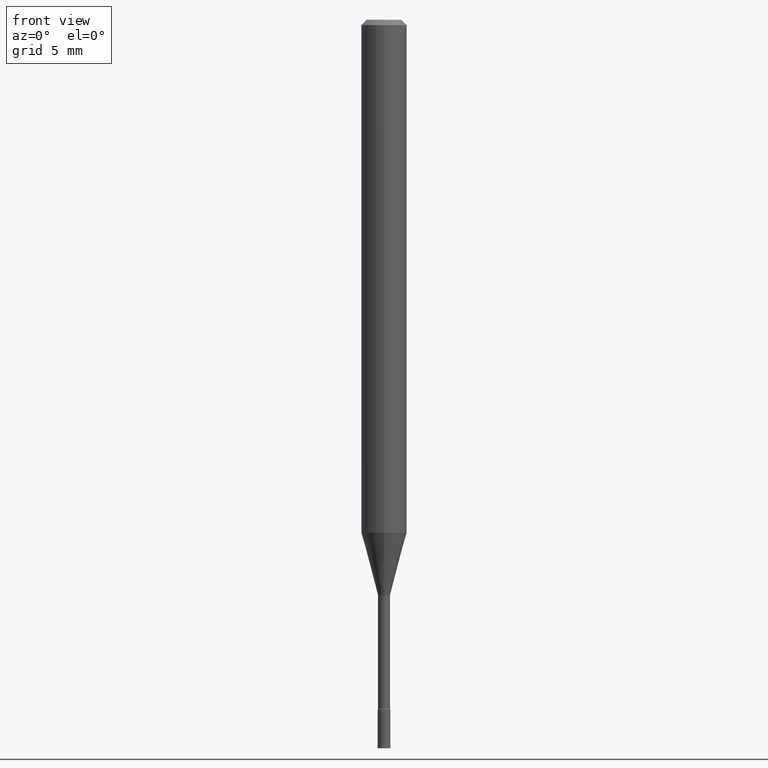
[diagram: clean part render]
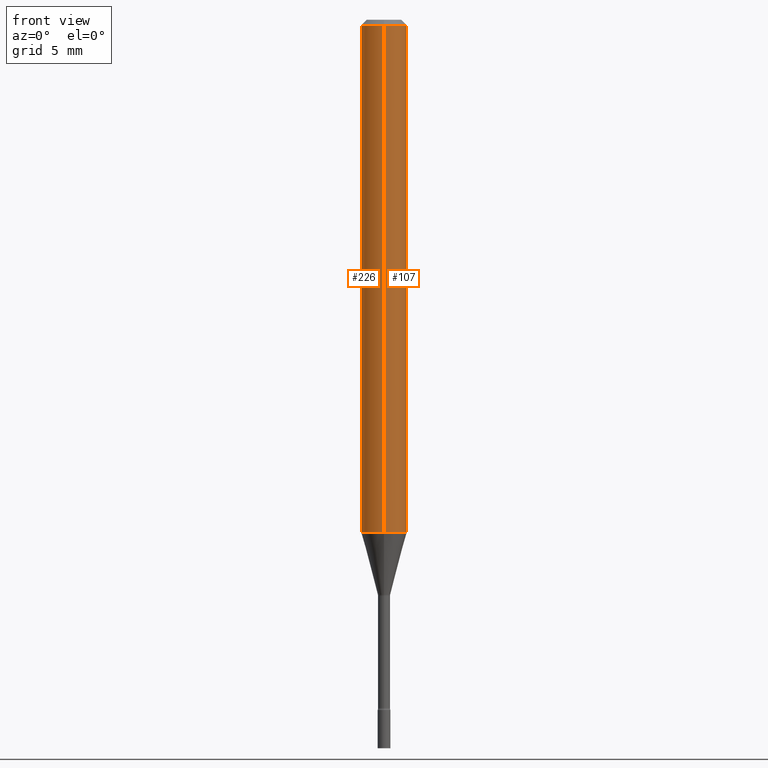
[diagram: same view with one multi-face feature highlighted, each face labeled with its STEP entity id]
A machine part, front view. The highlighted faces form ONE feature: a constant-radius fillet chain: 2 tangent blend faces with common blend radius 1.5875 mm. The faces share edges in the B-rep.
Their STEP definitions:
[1] entity #226 (Cylinder):
#5 = LINE ( 'NONE', #327, #28 ) ;
#13 = VERTEX_POINT ( 'NONE', #348 ) ;
#28 = VECTOR ( 'NONE', #398, 39.37007874015748143 ) ;
#31 = CARTESIAN_POINT ( 'NONE',  ( -4.364351673553916201E-16, -0.06250000000000000000, 2.182143973796483697E-16 ) ) ;
#53 = CARTESIAN_POINT ( 'NONE',  ( 0.000000000000000000, 0.000000000000000000, 0.000000000000000000 ) ) ;
#57 = ORIENTED_EDGE ( 'NONE', *, *, #69, .T. ) ;
#59 = EDGE_LOOP ( 'NONE', ( #330, #57, #421, #294 ) ) ;
#69 = EDGE_CURVE ( 'NONE', #13, #382, #179, .T. ) ;
#102 = EDGE_CURVE ( 'NONE', #382, #163, #379, .T. ) ;
#115 = CARTESIAN_POINT ( 'NONE',  ( -4.364351673553912750E-16, -0.06250000000000005551, -0.01499999999999981209 ) ) ;
#125 = DIRECTION ( 'NONE',  ( -6.982962677686265922E-15, -1.000000000000000000, 3.491430358074373916E-15 ) ) ;
#159 = CIRCLE ( 'NONE', #264, 0.06250000000000000000 ) ;
#163 = VERTEX_POINT ( 'NONE', #115 ) ;
#179 = CIRCLE ( 'NONE', #495, 0.06250000000000000000 ) ;
#202 = FACE_OUTER_BOUND ( 'NONE', #59, .T. ) ;
#210 = VERTEX_POINT ( 'NONE', #240 ) ;
#216 = CARTESIAN_POINT ( 'NONE',  ( -4.364351673553573540E-16, -0.06250000000000494049, -1.408139060311453195 ) ) ;
#225 = DIRECTION ( 'NONE',  ( -2.445504405865697767E-29, 3.491430358074373916E-15, 1.000000000000000000 ) ) ;
#226 = ADVANCED_FACE ( 'NONE', ( #202 ), #404, .T. ) ;
#240 = CARTESIAN_POINT ( 'NONE',  ( 4.440892098500972274E-16, 0.06249999999999993755, -0.01500000000000024751 ) ) ;
#255 = DIRECTION ( 'NONE',  ( -6.982962677686265922E-15, -1.000000000000000000, 3.483106191921935554E-15 ) ) ;
#264 = AXIS2_PLACEMENT_3D ( 'NONE', #383, #455, #255 ) ;
#294 = ORIENTED_EDGE ( 'NONE', *, *, #360, .F. ) ;
#304 = EDGE_CURVE ( 'NONE', #13, #210, #5, .T. ) ;
#310 = CARTESIAN_POINT ( 'NONE',  ( 3.443610276063243337E-29, -4.916419463561730281E-15, -1.408139060311453417 ) ) ;
#324 = DIRECTION ( 'NONE',  ( -2.445504405865697767E-29, 3.491430358074373916E-15, 1.000000000000000000 ) ) ;
#327 = CARTESIAN_POINT ( 'NONE',  ( 4.440892098500625669E-16, 0.06250000000000000000, -2.182143973796483697E-16 ) ) ;
#330 = ORIENTED_EDGE ( 'NONE', *, *, #304, .F. ) ;
#348 = CARTESIAN_POINT ( 'NONE',  ( 4.440892098500969316E-16, 0.06249999999999507339, -1.408139060311453639 ) ) ;
#360 = EDGE_CURVE ( 'NONE', #210, #163, #159, .T. ) ;
#379 = LINE ( 'NONE', #31, #486 ) ;
#382 = VERTEX_POINT ( 'NONE', #216 ) ;
#383 = CARTESIAN_POINT ( 'NONE',  ( 3.668256608798553500E-31, -5.237145537111571573E-17, -0.01500000000000003067 ) ) ;
#390 = DIRECTION ( 'NONE',  ( -2.445504405865697767E-29, 3.491430358074373916E-15, 1.000000000000000000 ) ) ;
#398 = DIRECTION ( 'NONE',  ( -2.445504405865697767E-29, 3.491430358074373916E-15, 1.000000000000000000 ) ) ;
#404 = CYLINDRICAL_SURFACE ( 'NONE', #456, 0.06250000000000000000 ) ;
#421 = ORIENTED_EDGE ( 'NONE', *, *, #102, .T. ) ;
#430 = DIRECTION ( 'NONE',  ( -6.982962677686265922E-15, -1.000000000000000000, 4.370956789862821150E-15 ) ) ;
#455 = DIRECTION ( 'NONE',  ( -2.445504405865697767E-29, 3.491430358074373916E-15, 1.000000000000000000 ) ) ;
#456 = AXIS2_PLACEMENT_3D ( 'NONE', #53, #324, #125 ) ;
#486 = VECTOR ( 'NONE', #390, 39.37007874015748143 ) ;
#495 = AXIS2_PLACEMENT_3D ( 'NONE', #310, #225, #430 ) ;
[2] entity #107 (Cylinder):
#5 = LINE ( 'NONE', #327, #28 ) ;
#13 = VERTEX_POINT ( 'NONE', #348 ) ;
#28 = VECTOR ( 'NONE', #398, 39.37007874015748143 ) ;
#31 = CARTESIAN_POINT ( 'NONE',  ( -4.364351673553916201E-16, -0.06250000000000000000, 2.182143973796483697E-16 ) ) ;
#58 = CARTESIAN_POINT ( 'NONE',  ( 3.443610276063243337E-29, -4.916419463561730281E-15, -1.408139060311453417 ) ) ;
#102 = EDGE_CURVE ( 'NONE', #382, #163, #379, .T. ) ;
#107 = ADVANCED_FACE ( 'NONE', ( #275 ), #139, .T. ) ;
#115 = CARTESIAN_POINT ( 'NONE',  ( -4.364351673553912750E-16, -0.06250000000000005551, -0.01499999999999981209 ) ) ;
#124 = AXIS2_PLACEMENT_3D ( 'NONE', #58, #211, #374 ) ;
#139 = CYLINDRICAL_SURFACE ( 'NONE', #478, 0.06250000000000000000 ) ;
#147 = DIRECTION ( 'NONE',  ( -6.982962677686265922E-15, -1.000000000000000000, 3.491430358074373916E-15 ) ) ;
#148 = CIRCLE ( 'NONE', #314, 0.06250000000000000000 ) ;
#163 = VERTEX_POINT ( 'NONE', #115 ) ;
#167 = EDGE_LOOP ( 'NONE', ( #452, #437, #203, #403 ) ) ;
#180 = CIRCLE ( 'NONE', #124, 0.06250000000000000000 ) ;
#203 = ORIENTED_EDGE ( 'NONE', *, *, #258, .F. ) ;
#210 = VERTEX_POINT ( 'NONE', #240 ) ;
#211 = DIRECTION ( 'NONE',  ( -2.445504405865697767E-29, 3.491430358074373916E-15, 1.000000000000000000 ) ) ;
#216 = CARTESIAN_POINT ( 'NONE',  ( -4.364351673553573540E-16, -0.06250000000000494049, -1.408139060311453195 ) ) ;
#240 = CARTESIAN_POINT ( 'NONE',  ( 4.440892098500972274E-16, 0.06249999999999993755, -0.01500000000000024751 ) ) ;
#258 = EDGE_CURVE ( 'NONE', #163, #210, #148, .T. ) ;
#275 = FACE_OUTER_BOUND ( 'NONE', #167, .T. ) ;
#304 = EDGE_CURVE ( 'NONE', #13, #210, #5, .T. ) ;
#314 = AXIS2_PLACEMENT_3D ( 'NONE', #361, #441, #319 ) ;
#319 = DIRECTION ( 'NONE',  ( -6.982962677686265922E-15, -1.000000000000000000, 3.483106191921935554E-15 ) ) ;
#327 = CARTESIAN_POINT ( 'NONE',  ( 4.440892098500625669E-16, 0.06250000000000000000, -2.182143973796483697E-16 ) ) ;
#345 = CARTESIAN_POINT ( 'NONE',  ( 0.000000000000000000, 0.000000000000000000, 0.000000000000000000 ) ) ;
#348 = CARTESIAN_POINT ( 'NONE',  ( 4.440892098500969316E-16, 0.06249999999999507339, -1.408139060311453639 ) ) ;
#361 = CARTESIAN_POINT ( 'NONE',  ( 3.668256608798553500E-31, -5.237145537111571573E-17, -0.01500000000000003067 ) ) ;
#374 = DIRECTION ( 'NONE',  ( -6.982962677686265922E-15, -1.000000000000000000, 4.370956789862821150E-15 ) ) ;
#379 = LINE ( 'NONE', #31, #486 ) ;
#382 = VERTEX_POINT ( 'NONE', #216 ) ;
#390 = DIRECTION ( 'NONE',  ( -2.445504405865697767E-29, 3.491430358074373916E-15, 1.000000000000000000 ) ) ;
#398 = DIRECTION ( 'NONE',  ( -2.445504405865697767E-29, 3.491430358074373916E-15, 1.000000000000000000 ) ) ;
#403 = ORIENTED_EDGE ( 'NONE', *, *, #102, .F. ) ;
#437 = ORIENTED_EDGE ( 'NONE', *, *, #304, .T. ) ;
#441 = DIRECTION ( 'NONE',  ( -2.445504405865697767E-29, 3.491430358074373916E-15, 1.000000000000000000 ) ) ;
#452 = ORIENTED_EDGE ( 'NONE', *, *, #465, .T. ) ;
#465 = EDGE_CURVE ( 'NONE', #382, #13, #180, .T. ) ;
#478 = AXIS2_PLACEMENT_3D ( 'NONE', #345, #509, #147 ) ;
#486 = VECTOR ( 'NONE', #390, 39.37007874015748143 ) ;
#509 = DIRECTION ( 'NONE',  ( -2.445504405865697767E-29, 3.491430358074373916E-15, 1.000000000000000000 ) ) ;